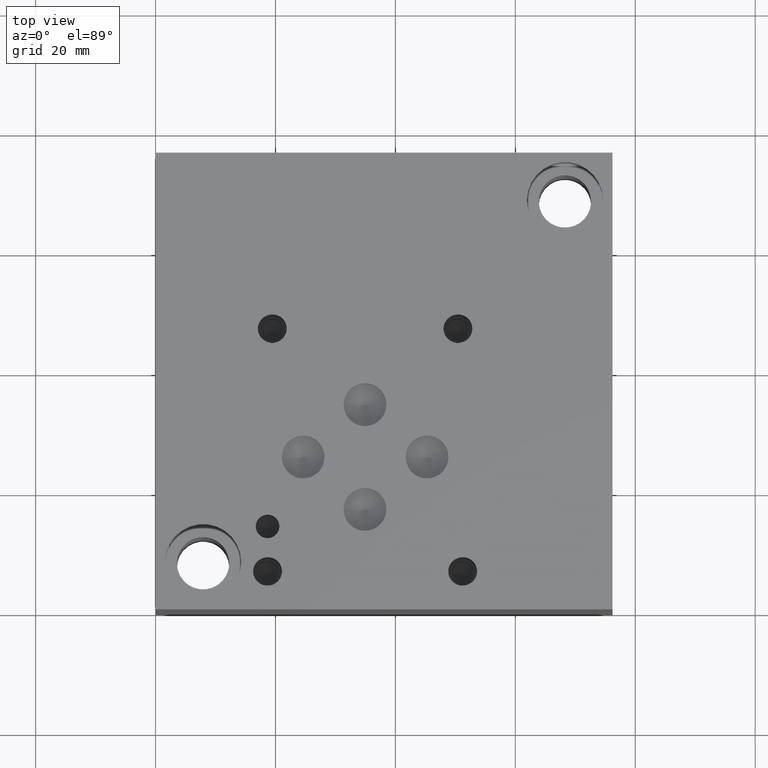
[diagram: clean part render]
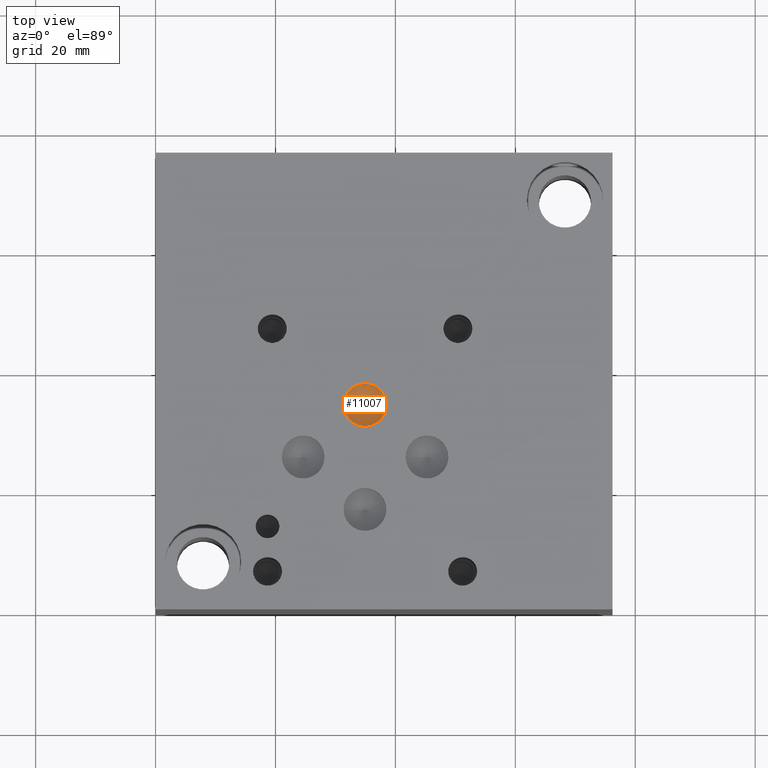
[diagram: same view with one face highlighted and labeled with its STEP entity id]
A machine part, top view. The second image highlights one B-rep face of the part: STEP entity #11007.
In plain terms, the highlighted conical surface has half-angle 60 deg.
Its self-contained STEP definition (entity closure, byte-faithful):
#44=CONICAL_SURFACE('',#11570,1.78435,1.0471975511966);
#251=CIRCLE('',#11571,3.5687);
#252=CIRCLE('',#11572,3.5687);
#1225=FACE_OUTER_BOUND('',#1848,.T.);
#1848=EDGE_LOOP('',(#9684,#9685,#9686,#9687));
#2879=LINE('',#18980,#3882);
#3882=VECTOR('',#13669,1.78435);
#5217=VERTEX_POINT('',#18976);
#5218=VERTEX_POINT('',#18977);
#5219=VERTEX_POINT('',#18979);
#6733=EDGE_CURVE('',#5217,#5218,#251,.T.);
#6734=EDGE_CURVE('',#5218,#5219,#2879,.T.);
#6735=EDGE_CURVE('',#5218,#5217,#252,.T.);
#9684=ORIENTED_EDGE('',*,*,#6733,.T.);
#9685=ORIENTED_EDGE('',*,*,#6734,.T.);
#9686=ORIENTED_EDGE('',*,*,#6734,.F.);
#9687=ORIENTED_EDGE('',*,*,#6735,.T.);
#11007=ADVANCED_FACE('',(#1225),#44,.F.);
#11570=AXIS2_PLACEMENT_3D('',#18975,#13665,#13666);
#11571=AXIS2_PLACEMENT_3D('',#18978,#13667,#13668);
#11572=AXIS2_PLACEMENT_3D('',#18981,#13670,#13671);
#13665=DIRECTION('center_axis',(0.,0.,1.));
#13666=DIRECTION('ref_axis',(1.,0.,0.));
#13667=DIRECTION('center_axis',(0.,0.,1.));
#13668=DIRECTION('ref_axis',(1.,0.,0.));
#13669=DIRECTION('',(0.866025403784439,1.06057523872491E-16,-0.5));
#13670=DIRECTION('center_axis',(0.,0.,1.));
#13671=DIRECTION('ref_axis',(1.,0.,0.));
#18975=CARTESIAN_POINT('Origin',(34.925,34.1376,54.0594150471715));
#18976=CARTESIAN_POINT('',(38.4937,34.1376,55.08961));
#18977=CARTESIAN_POINT('',(31.3563,34.1376,55.08961));
#18978=CARTESIAN_POINT('Origin',(34.925,34.1376,55.08961));
#18979=CARTESIAN_POINT('',(34.925,34.1376,53.029220094343));
#18980=CARTESIAN_POINT('',(33.14065,34.1376,54.0594150471715));
#18981=CARTESIAN_POINT('Origin',(34.925,34.1376,55.08961));